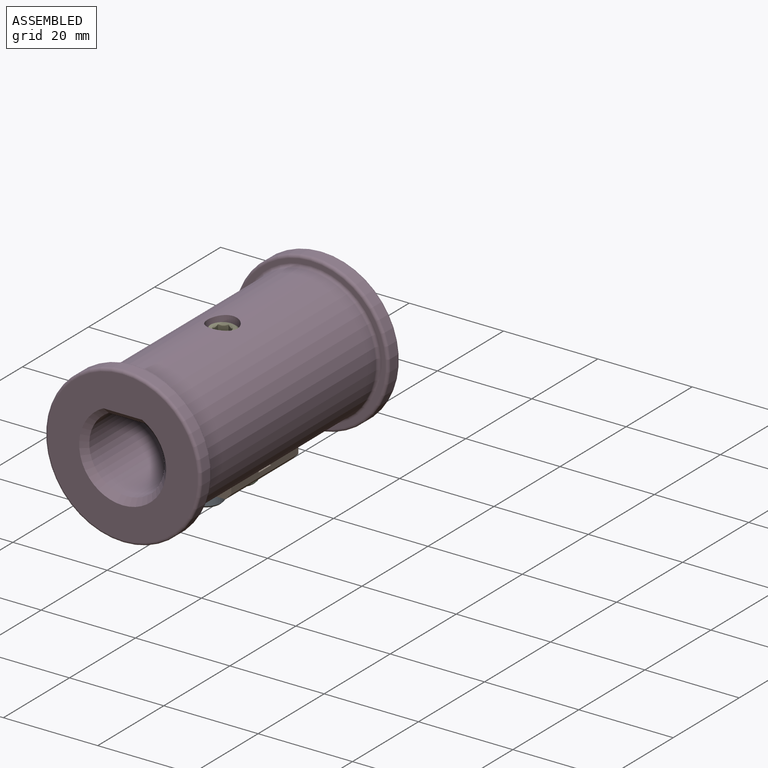
[diagram: assembled view]
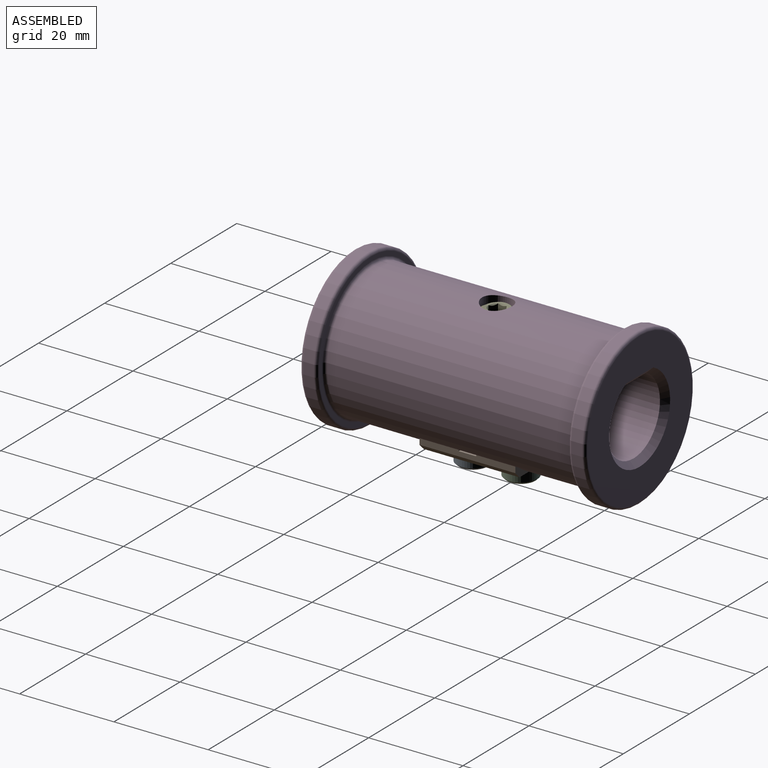
[diagram: assembled view, second angle]
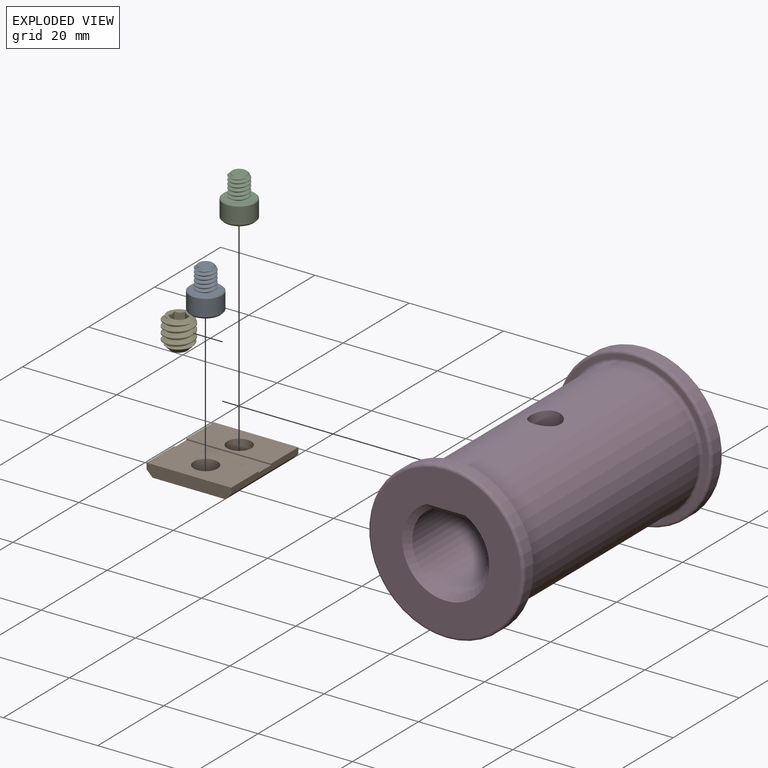
[diagram: exploded view]
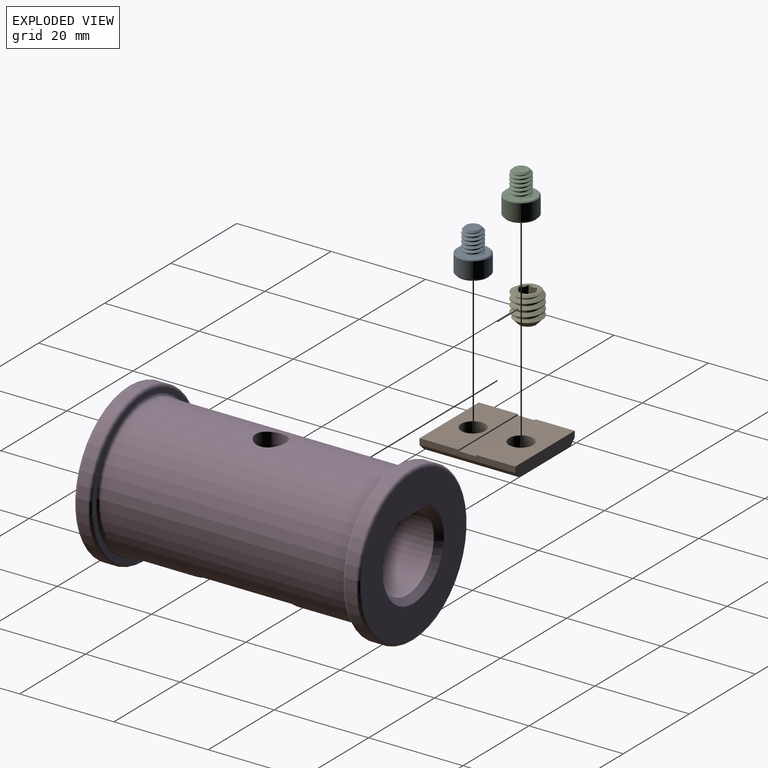
[diagram: exploded view, second angle]
ASSEMBLY  parts=5 mates=3
PART A: 24 faces, bbox 7.6x7.6x10.4 mm
  f0: cone r=3.43mm half-angle=45deg, axis (0,0,-1), area 6.2mm2, adj f1,f8
  f1: plane 6.75x6.75mm, normal (0,0,1), area 22mm2, adj f0,f2,f5,f6,f7
  f2: bspline ~5.75x4.16mm, area 37.3mm2, adj f1,f3,f5,f7
  f3: cone r=1.49mm half-angle=45deg, axis (0,0,-1), area 5.1mm2, adj f2,f4,f5,f6,f7
  f4: plane 2.98x2.98mm, normal (0,0,1), area 7mm2, adj f3
  f5: cylinder r=1.57mm len=4.68mm, axis (0,0,-1), area 5.8mm2, adj f1,f2,f3,f6
  f6: bspline ~4.98x4.16mm, area 38mm2, adj f1,f3,f5,f7
  f7: cylinder r=2.08mm len=4.17mm, axis (0,0,1), area 6.8mm2, adj f1,f2,f3,f6
  f8: cylinder r=3.43mm len=6.86mm, axis (0,0,1), area 76.3mm2, adj f0,f9
  f9: cone r=3.01mm half-angle=45deg, axis (0,0,1), area 11.9mm2, adj f8,f10
  f10: plane 6.7x6.7mm, normal (0,0,-1), area 15.1mm2, adj f9,f11,f19,f20,f21,f22,f23
  f11: cone r=2.06mm half-angle=45deg, axis (0,0,-1), area 0mm2, adj f10,f12
  f12: plane 3.46x2.57mm, normal (-0.5,-0.87,0), area 5.1mm2, adj f11,f13,f17,f18
  f13: plane 4.12x3.57mm, normal (0,0,-1), area 11mm2, adj f12,f14,f15,f16,f17,f18
  f14: plane 2.88x2.26mm, normal (1,0,0), area 5.2mm2, adj f13,f15,f18,f22
  f15: plane 3.46x2.57mm, normal (0.5,0.87,0), area 5.2mm2, adj f13,f14,f16,f21
  f16: plane 3.46x2.57mm, normal (-0.5,0.87,0), area 5.1mm2, adj f13,f15,f17,f20
  f17: plane 3.46x2.84mm, normal (-1,0,0), area 5.2mm2, adj f12,f13,f16,f19
  f18: plane 3.46x2.57mm, normal (0.5,-0.87,0), area 5.2mm2, adj f12,f13,f14,f23
  f19: cone r=2.06mm half-angle=45deg, axis (0,0,-1), area 0mm2, adj f10,f17
  f20: cone r=2.06mm half-angle=45deg, axis (0,0,-1), area 0mm2, adj f10,f16
  f21: cone r=2.06mm half-angle=45deg, axis (0,0,-1), area 0mm2, adj f10,f15
  f22: cone r=2.06mm half-angle=45deg, axis (0,0,-1), area 0.4mm2, adj f10,f14
  f23: cone r=2.06mm half-angle=45deg, axis (0,0,-1), area 0mm2, adj f10,f18
PART B: 14 faces, bbox 18x20.3x2.5 mm
  f0: plane 17.97x8.28mm, normal (0,0,1), area 128.5mm2, adj f1,f3,f4,f6,f11
  f1: plane 20.32x1.27mm, normal (1,0,0), area 24.8mm2, adj f0,f2,f6,f8,f10,f11,f12,f13
  f2: plane 17.97x2.54mm, normal (0,-1,0), area 44mm2, adj f1,f3,f7,f8,f9,f10
  f3: plane 20.32x1.27mm, normal (-1,0,0), area 24.8mm2, adj f0,f2,f6,f8,f9,f11,f12,f13
  f4: cylinder r=2.54mm len=5.08mm, axis (0,0,1), area 40.5mm2, adj f0,f7
  f5: cylinder r=2.54mm len=5.08mm, axis (0,0,1), area 40.5mm2, adj f7,f8
  f6: plane 17.97x2.54mm, normal (0,1,0), area 44mm2, adj f0,f1,f3,f7,f9,f10
  f7: plane 20.32x15.43mm, normal (0,0,-1), area 273mm2, adj f2,f4,f5,f6,f9,f10
  f8: plane 17.97x8.28mm, normal (0,0,1), area 128.5mm2, adj f1,f2,f3,f5,f13
  f9: plane 20.32x1.27mm, normal (-0.71,0,-0.71), area 36.5mm2, adj f2,f3,f6,f7
  f10: plane 20.32x1.27mm, normal (0.71,0,-0.71), area 36.5mm2, adj f1,f2,f6,f7
  f11: plane 17.97x0.26mm, normal (0,-1,0), area 4.7mm2, adj f0,f1,f3,f12
  f12: plane 17.97x3.76mm, normal (0,0,1), area 67.6mm2, adj f1,f3,f11,f13
  f13: plane 17.97x0.26mm, normal (0,1,0), area 4.7mm2, adj f1,f3,f8,f12
PART C: same geometry as A
PART D: 25 faces, bbox 35.8x60.5x35.8 mm
  f0: cylinder r=14.3mm len=52.07mm, axis (0,1,0), area 4227.1mm2, adj f9,f10,f11,f12,f15,f17
  f1: cylinder r=16.51mm len=33.02mm, axis (0,1,0), area 237.1mm2, adj f16,f19
  f2: cylinder r=7.96mm len=57.91mm, axis (0,1,0), area 2409.9mm2, adj f3,f13,f14,f21,f23
  f3: plane 57.91x7.62mm, normal (0,0,-1), area 409.6mm2, adj f2,f9,f22,f24
  f4: cylinder r=16.51mm len=33.02mm, axis (0,1,0), area 237.1mm2, adj f18,f20
  f5: plane 31.75x31.75mm, normal (0,-1,0), area 529.3mm2, adj f20,f21,f22
  f6: plane 31.75x31.75mm, normal (0,1,0), area 529.3mm2, adj f19,f23,f24
  f7: plane 31.75x31.75mm, normal (0,1,0), area 91mm2, adj f17,f18
  f8: plane 31.75x31.75mm, normal (0,-1,0), area 91mm2, adj f15,f16
  f9: cylinder r=3.17mm len=7.31mm, axis (0,0,-1), area 142.2mm2, adj f0,f3
  f10: plane 17.97x3.18mm, normal (0,-1,0), area 39mm2, adj f0,f12
  f11: plane 17.97x3.18mm, normal (0,1,0), area 39mm2, adj f0,f12
  f12: plane 21.59x17.97mm, normal (0,0,-1), area 360.7mm2, adj f0,f10,f11,f13,f14
  f13: cylinder r=2.08mm len=4.17mm, axis (0,0,-1), area 43.2mm2, adj f2,f12
  f14: cylinder r=2.08mm len=4.17mm, axis (0,0,-1), area 43.2mm2, adj f2,f12
  f15: torus R=14.94mm, axis (0,-1,0), area 91.1mm2, adj f0,f8
  f16: torus R=15.88mm, axis (0,-1,0), area 102mm2, adj f1,f8
  f17: torus R=14.94mm, axis (0,-1,0), area 91.1mm2, adj f0,f7
  f18: torus R=15.88mm, axis (0,-1,0), area 102mm2, adj f4,f7
  f19: torus R=15.88mm, axis (0,-1,0), area 102mm2, adj f1,f6
  f20: torus R=15.88mm, axis (0,-1,0), area 102mm2, adj f4,f5
  f21: cone r=7.96mm half-angle=45deg, axis (0,-1,0), area 82.2mm2, adj f2,f5,f22
  f22: plane 8.26x1.29mm, normal (0,-0.71,-0.71), area 14.3mm2, adj f3,f5,f21
  f23: cone r=9.23mm half-angle=45deg, axis (0,1,0), area 82.2mm2, adj f2,f6,f24
  f24: plane 8.26x1.29mm, normal (0,0.71,-0.71), area 14.3mm2, adj f3,f6,f23
PART E: 27 faces, bbox 7x7x7.5 mm
  f0: cone r=1.59mm half-angle=60deg, axis (0,0,1), area 9.1mm2, adj f1,f22,f23,f24,f25,f26
  f1: plane 1.38x0.79mm, normal (0,0,1), area 0.1mm2, adj f0,f2,f21
  f2: plane 2.16x2.01mm, normal (-1,0,0), area 3.3mm2, adj f1,f3,f20,f21,f22
  f3: plane 2.68x2.28mm, normal (-0.5,-0.87,0), area 3.3mm2, adj f2,f4,f19,f22,f23
  f4: plane 2.68x2.28mm, normal (0.5,-0.87,0), area 3.3mm2, adj f3,f5,f18,f23,f24
  f5: plane 2.68x2.53mm, normal (1,0,0), area 3.3mm2, adj f4,f6,f17,f24,f25
  f6: plane 2.68x2.28mm, normal (0.5,0.87,0), area 3.3mm2, adj f5,f7,f21,f25,f26
  f7: cone r=1.83mm half-angle=45deg, axis (0,0,1), area 0mm2, adj f6,f8
  f8: plane 5.12x4.96mm, normal (0,0,1), area 9.1mm2, adj f7,f9,f10,f14,f15,f16,f17,f18
  f9: cone r=1.83mm half-angle=45deg, axis (0,0,1), area 0mm2, adj f8,f21
  f10: cylinder r=2.35mm len=5.74mm, axis (0,0,-1), area 10.6mm2, adj f8,f11,f14,f16
  f11: cone r=1.74mm half-angle=45deg, axis (0,0,1), area 20.8mm2, adj f10,f12,f13,f14,f16
  f12: cylinder r=3.17mm len=6.35mm, axis (0,0,1), area 11.1mm2, adj f11,f14,f15,f16
  f13: plane 3.48x3.48mm, normal (0,0,-1), area 9.5mm2, adj f11
  f14: bspline ~6.35x6.35mm, area 68.6mm2, adj f8,f10,f11,f12,f15
  f15: cone r=3.17mm half-angle=55deg, axis (0,0,-1), area 5.6mm2, adj f8,f12,f14,f16
  f16: bspline ~6.51x6.35mm, area 66.8mm2, adj f8,f10,f11,f12,f15
  f17: cone r=1.83mm half-angle=45deg, axis (0,0,1), area 0mm2, adj f5,f8
  f18: cone r=1.83mm half-angle=45deg, axis (0,0,1), area 0mm2, adj f4,f8
  f19: cone r=1.83mm half-angle=45deg, axis (0,0,1), area 0mm2, adj f3,f8
  f20: cone r=1.83mm half-angle=45deg, axis (0,0,1), area 0.3mm2, adj f2,f8
  f21: plane 2.68x2.28mm, normal (-0.5,0.87,0), area 3.3mm2, adj f1,f2,f6,f9,f26
  f22: plane 1.38x0.79mm, normal (0,0,1), area 0.1mm2, adj f0,f2,f3
  f23: plane 1.59x0.46mm, normal (0,0,1), area 0.1mm2, adj f0,f3,f4
  f24: plane 1.38x0.79mm, normal (0,0,1), area 0.1mm2, adj f0,f4,f5
  f25: plane 1.38x0.79mm, normal (0,0,1), area 0.1mm2, adj f0,f5,f6
  f26: plane 1.59x0.46mm, normal (0,0,1), area 0.1mm2, adj f0,f6,f21
PLACE A t=(-1.09,-8.61,-8.59)mm
PLACE B t=(-1.09,-3.53,0.31)mm
PLACE C t=(-1.09,1.55,-8.59)mm
PLACE D t=(-1.09,-3.53,0.31)mm fixed
PLACE E t=(-1.09,-3.53,10.82)mm
MATE fastened A.f0 <-> B.f5  axis (0,0,1) through (-1.09,-8.61,-13.35)mm
MATE fastened C.f0 <-> B.f4  axis (0,0,1) through (-1.09,1.55,-13.35)mm
MATE fastened E.f0 <-> D.f9  axis (0,0,1) through (-1.09,-3.53,11.48)mm
